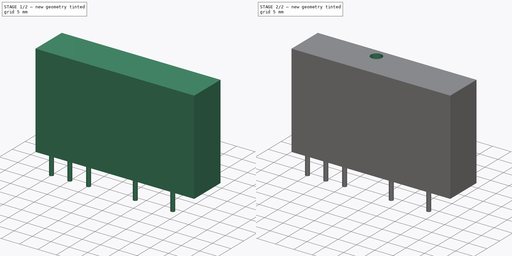
[diagram: build sequence overview — one tinted view per stage of 2, left to right]
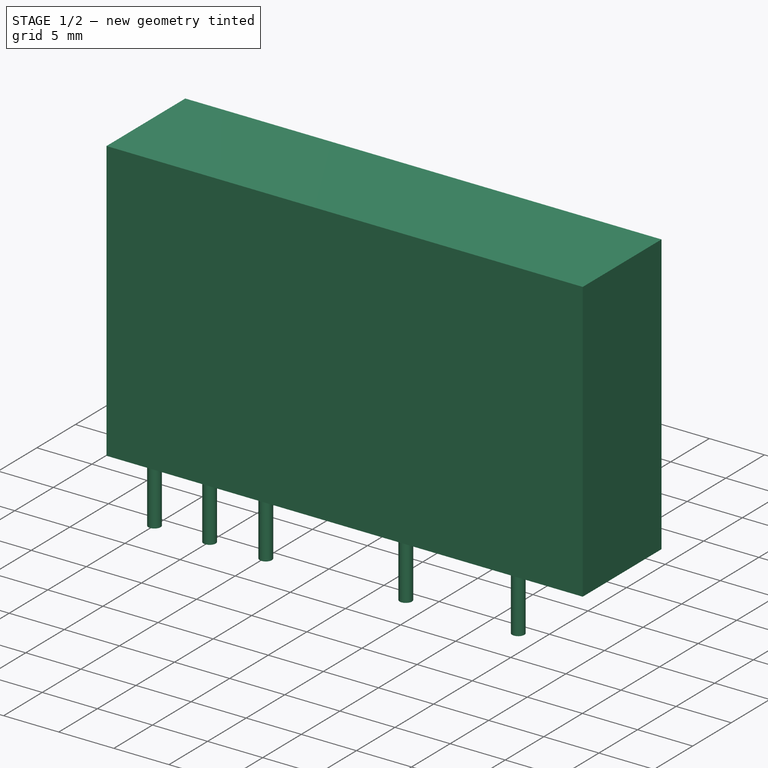
[diagram: stage 1 of 2 — iso view after this stage's code; geometry added in this stage tinted green]
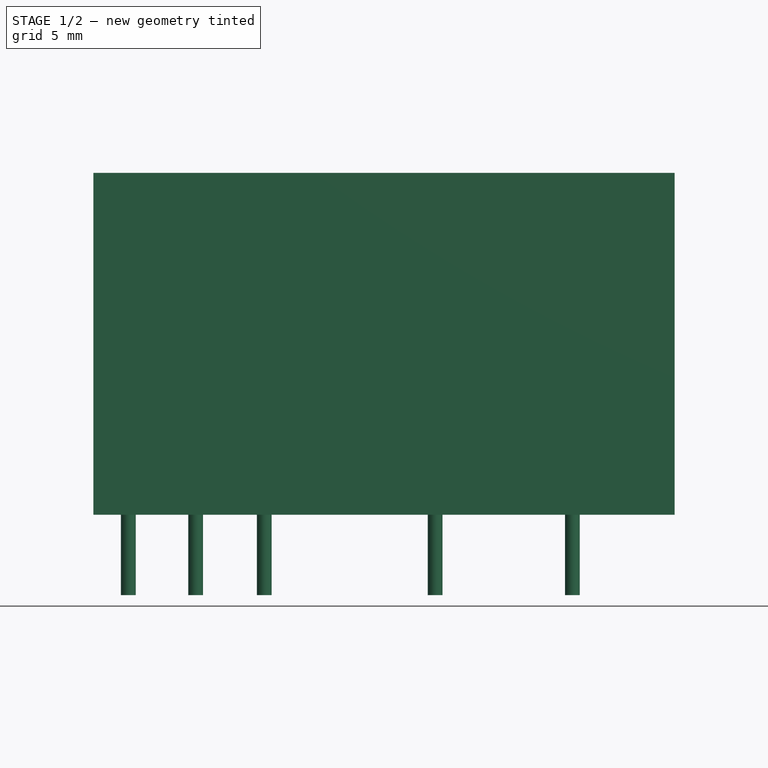
[diagram: stage 1 of 2 — front view after this stage's code; geometry added in this stage tinted green]
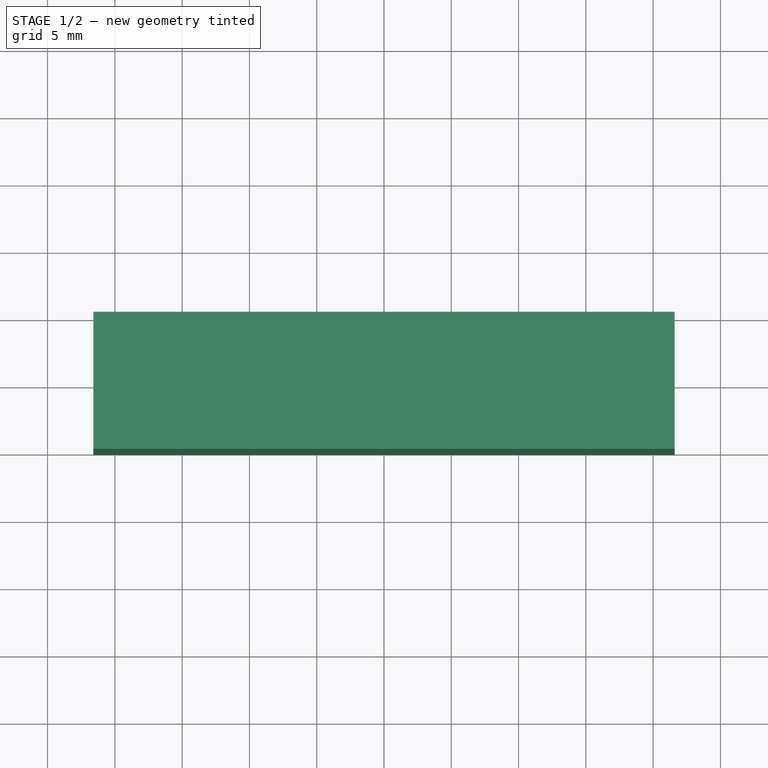
[diagram: stage 1 of 2 — top view after this stage's code; geometry added in this stage tinted green]
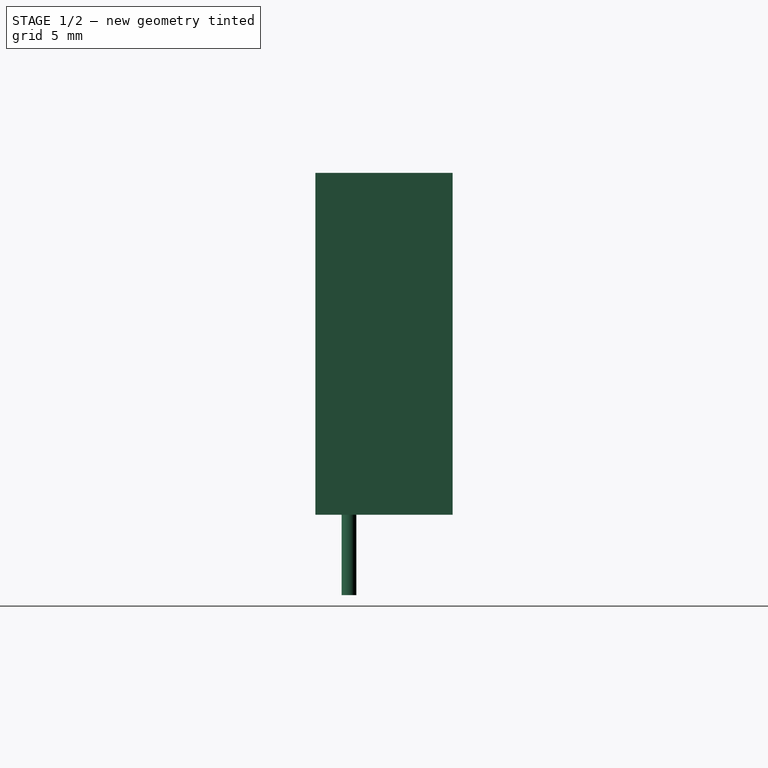
[diagram: stage 1 of 2 — right view after this stage's code; geometry added in this stage tinted green]
FCSTD DOCUMENT  (FreeCAD 0.21R33694 (Git))
Label: 3D model
License: All rights reserved
objects: Sketcher::SketchObject×3, PartDesign::Pad×2, PartDesign::Pocket×1, PartDesign::Body×1
note: 10 computed .brp shape members not serialized (recipe doc carries the construction recipe); baked Part::Feature solids carry a one-line shape summary decoded from their .brp

FEATURE [Sketcher::SketchObject] Sketch
  FullyConstrained = true
  MapMode = 5
  Support = -> [XY_Plane]
  sketch-geometry (5):
    g0: LineSegment StartX=-21.6 StartY=-5.1 StartZ=0 EndX=-21.6 EndY=5.1 EndZ=0
    g1: LineSegment StartX=-21.6 StartY=5.1 StartZ=0 EndX=21.6 EndY=5.1 EndZ=0
    g2: LineSegment StartX=21.6 StartY=5.1 StartZ=0 EndX=21.6 EndY=-5.1 EndZ=0
    g3: LineSegment StartX=21.6 StartY=-5.1 StartZ=0 EndX=-21.6 EndY=-5.1 EndZ=0
    g4: GeomPoint X=0 Y=0 Z=0
  constraints (12):
    c: Coincident(g0,g1)
    c: Coincident(g1,g2)
    c: Coincident(g2,g3)
    c: Coincident(g3,g0)
    c: Horizontal(g1)
    c: Horizontal(g3)
    c: Vertical(g0)
    c: Vertical(g2)
    c: Symmetric(g1,g0,g4)
    c: Coincident(g4,g-1)
    c: DistanceX(g1,g1) = 43.2
    c: DistanceY(g2,g2) = 10.2
FEATURE [PartDesign::Pad] Pad
  Direction = (0,0,1)
  Length = 25.4
  Length2 = 10
  Profile = -> Sketch
  ReferenceAxis = -> Sketch [N_Axis]
  Type = 0
FEATURE [Sketcher::SketchObject] Sketch001
  ExternalGeometry = -> [Pad]
  FullyConstrained = true
  MapMode = 5
  Placement = pos=(0,0,0) rot=(1,0,0;3.14159rad)
  Support = -> [Pad]
  sketch-geometry (5):
    g0: Circle CenterX=14 CenterY=2.6 CenterZ=0 NormalX=0 NormalY=0 NormalZ=1 AngleXU=0 Radius=0.55
    g1: Circle CenterX=3.8 CenterY=2.6 CenterZ=0 NormalX=0 NormalY=0 NormalZ=1 AngleXU=0 Radius=0.55
    g2: Circle CenterX=-8.9 CenterY=2.6 CenterZ=0 NormalX=0 NormalY=0 NormalZ=1 AngleXU=0 Radius=0.55
    g3: Circle CenterX=-14 CenterY=2.6 CenterZ=0 NormalX=0 NormalY=0 NormalZ=1 AngleXU=0 Radius=0.55
    g4: Circle CenterX=-19 CenterY=2.6 CenterZ=0 NormalX=0 NormalY=0 NormalZ=1 AngleXU=0 Radius=0.55
  constraints (15):
    c: Diameter(g0) = 1.1
    c: Diameter(g1) = 1.1
    c: Diameter(g2) = 1.1
    c: Diameter(g3) = 1.1
    c: Diameter(g4) = 1.1
    c: DistanceY(g0,g-3) = 2.5
    c: DistanceY(g1,g-3) = 2.5
    c: DistanceY(g2,g-3) = 2.5
    c: DistanceY(g3,g-3) = 2.5
    c: DistanceY(g4,g-3) = 2.5
    c: DistanceX(g0,g-3) = 7.6
    c: DistanceX(g1,g-3) = 17.8
    c: DistanceX(g2,g-3) = 30.5
    c: DistanceX(g3,g-3) = 35.6
    c: DistanceX(g4,g-3) = 40.6
FEATURE [PartDesign::Pad] Pad001
  BaseFeature = -> Pad
  Direction = (0,0,-1)
  Length = 5.97
  Length2 = 10
  Profile = -> Sketch001
  ReferenceAxis = -> Sketch001 [N_Axis]
  Type = 0
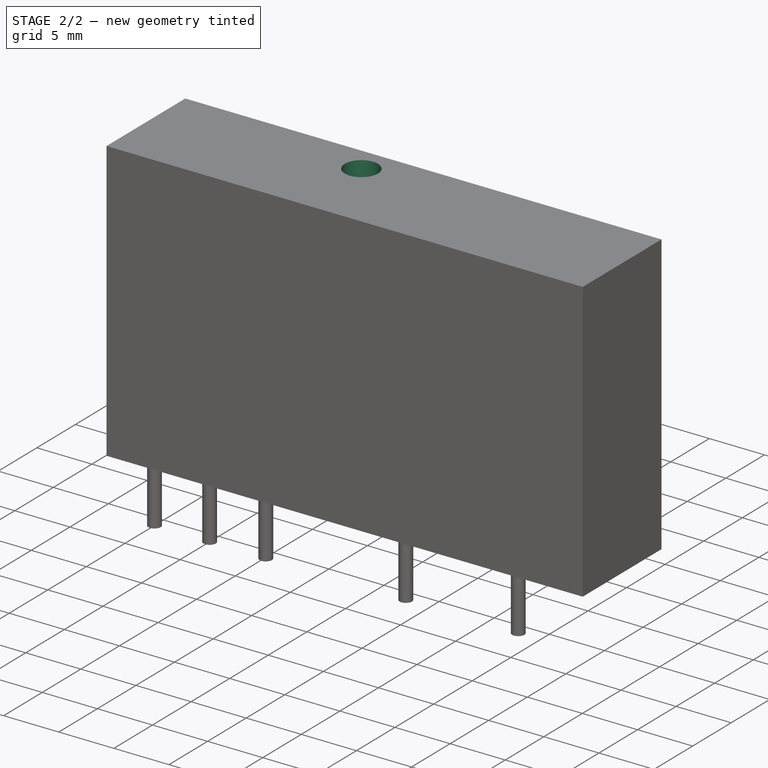
[diagram: stage 2 of 2 — iso view after this stage's code; geometry added in this stage tinted green]
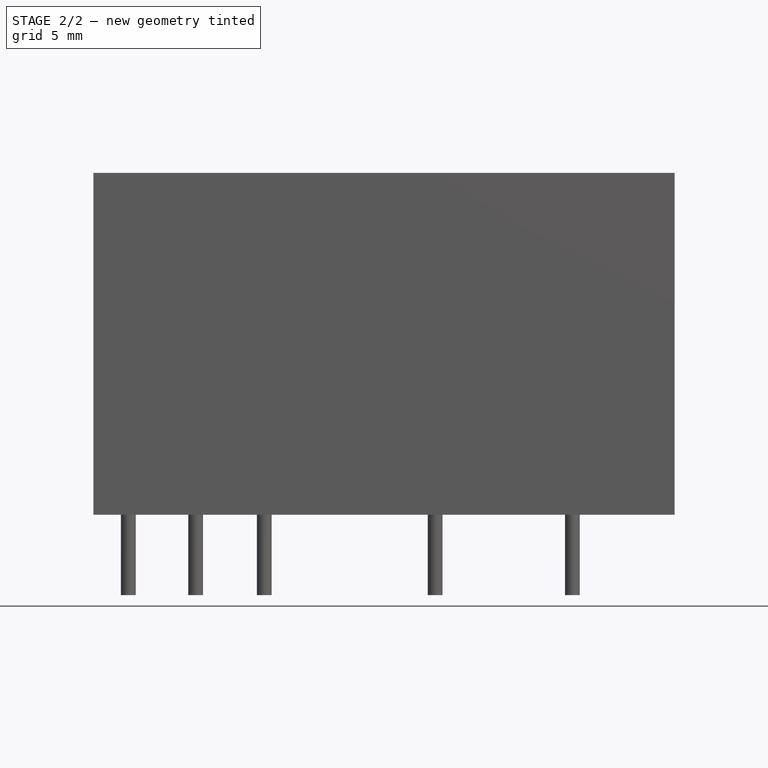
[diagram: stage 2 of 2 — front view after this stage's code; geometry added in this stage tinted green]
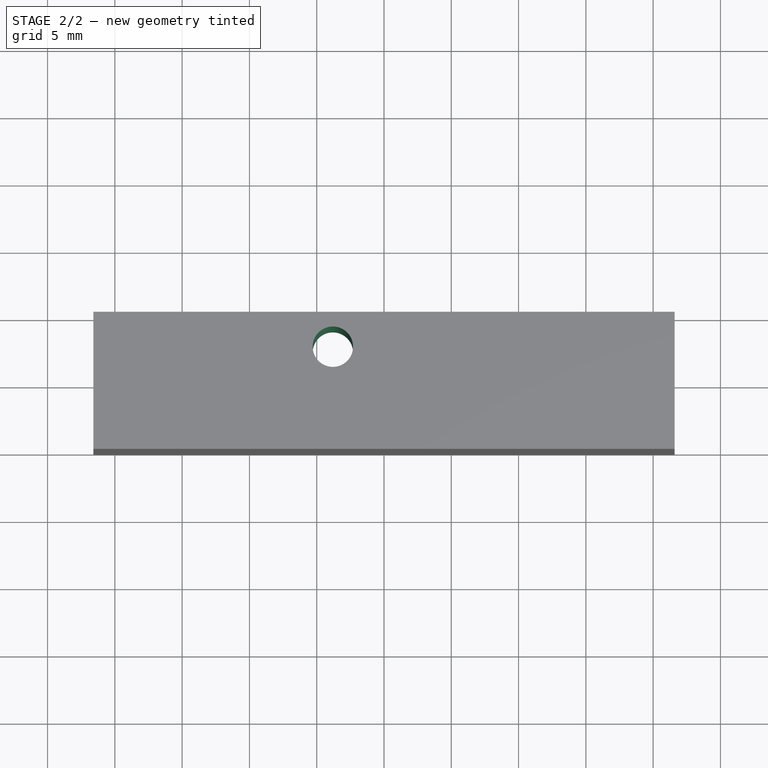
[diagram: stage 2 of 2 — top view after this stage's code; geometry added in this stage tinted green]
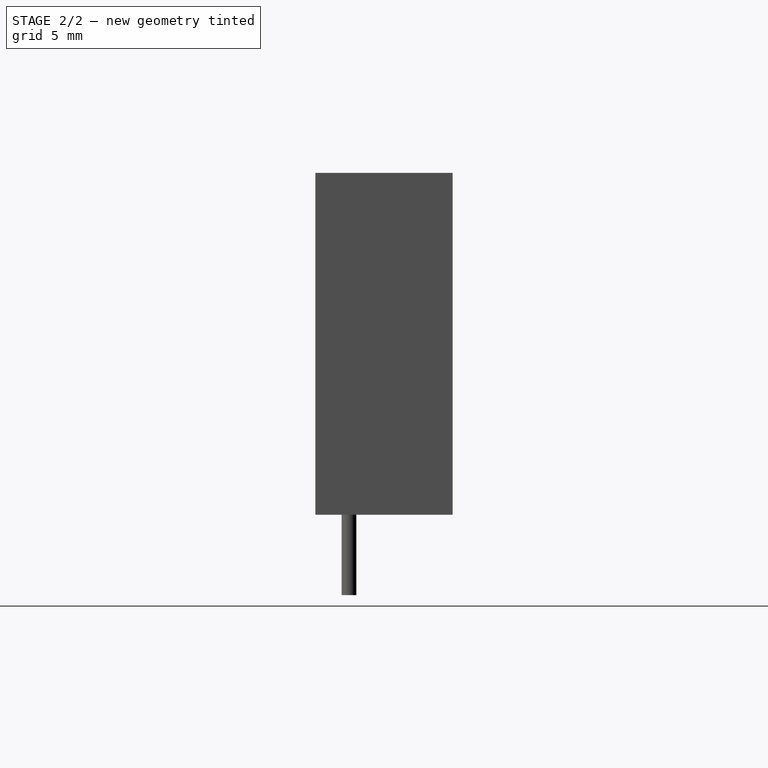
[diagram: stage 2 of 2 — right view after this stage's code; geometry added in this stage tinted green]
FEATURE [Sketcher::SketchObject] Sketch002
  ExternalGeometry = -> [Pad]
  FullyConstrained = true
  MapMode = 5
  Placement = pos=(0,0,0) rot=(1,0,0;3.14159rad)
  Support = -> [Pad001]
  expr: Constraints[1] = Sketch001.Constraints[0]
  expr: Constraints[2] = Sketch001.Constraints[5]
  expr: Constraints[3] = Sketch001.Constraints[10]
  sketch-geometry (2):
    g0: Circle CenterX=-3.8 CenterY=-2.5 CenterZ=0 NormalX=0 NormalY=0 NormalZ=1 AngleXU=0 Radius=1.5
    g1: Circle CenterX=14 CenterY=2.6 CenterZ=0 NormalX=0 NormalY=0 NormalZ=1 AngleXU=0 Radius=0.55
  constraints (6):
    c: Diameter(g0) = 3
    c: Diameter(g1) = 1.1
    c: DistanceY(g1,g-3) = 2.5
    c: DistanceX(g1,g-3) = 7.6
    c: DistanceX(g0,g-3) = 25.4
    c: DistanceY(g0,g1) = 5.1
FEATURE [PartDesign::Pocket] Pocket
  BaseFeature = -> Pad001
  Direction = (0,0,1)
  Length = 5
  Length2 = 5
  Profile = -> Sketch002
  ReferenceAxis = -> Sketch002 [N_Axis]
  Type = 1
FEATURE [PartDesign::Body] Body  label="Тело"
  Group = -> [Sketch,Sketch001,Pad,Pad001,Sketch002,Pocket]
  Origin = -> Origin
  Tip = -> Pocket
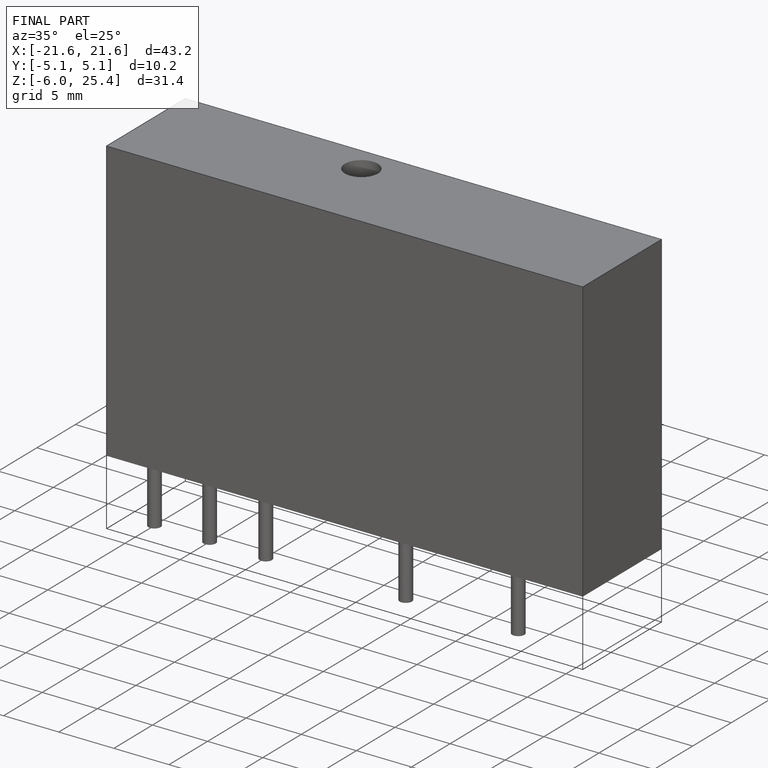
[diagram: finished part — iso view with bounding-box wireframe]
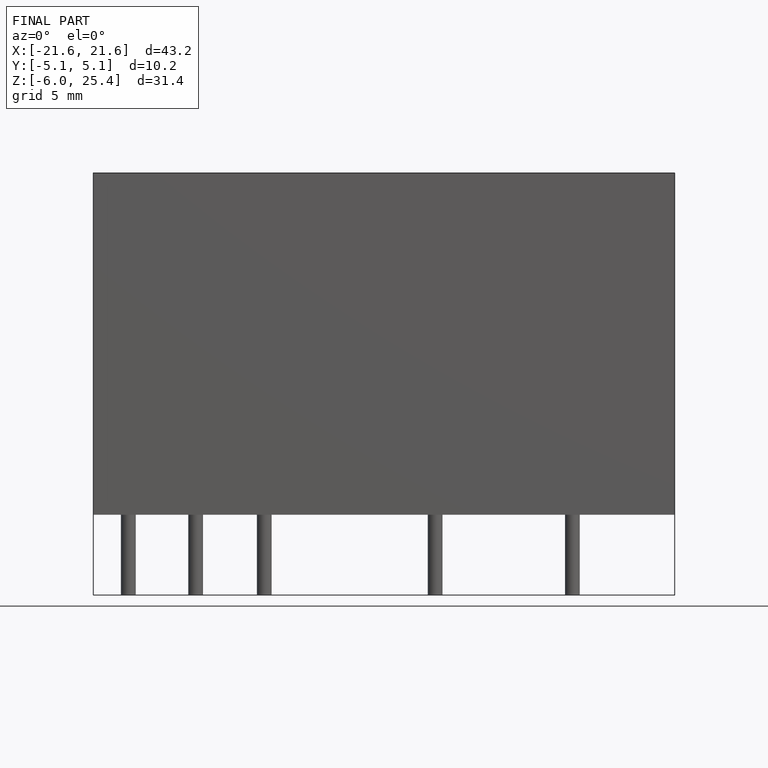
[diagram: finished part — front view with bounding-box wireframe]
